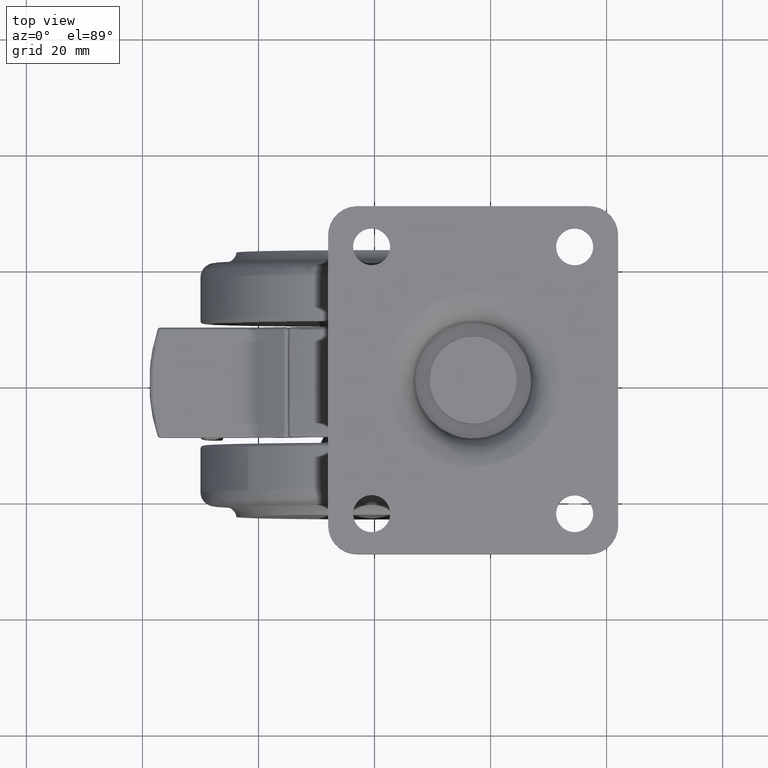
[diagram: clean part render]
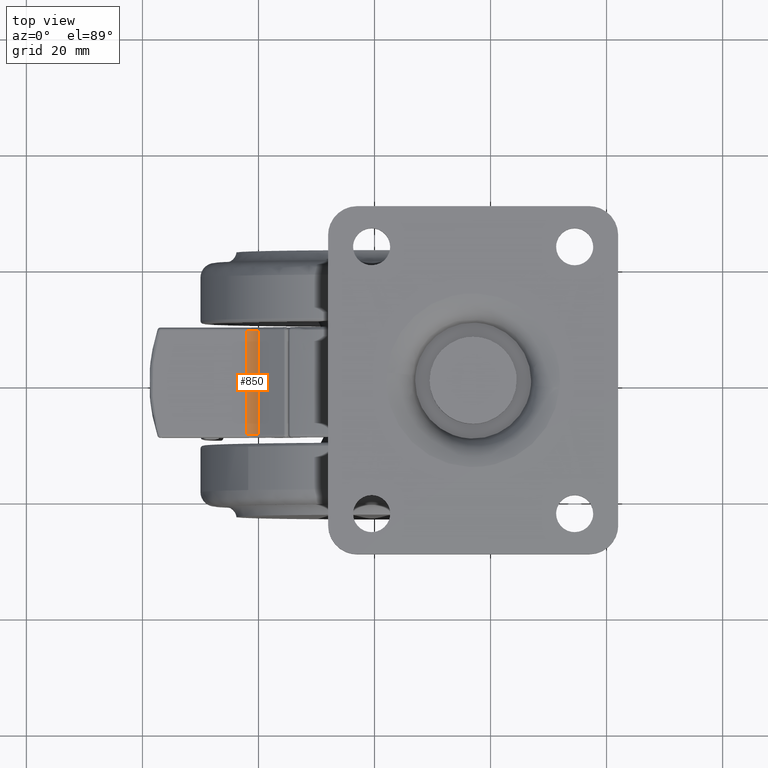
[diagram: same view with one face highlighted and labeled with its STEP entity id]
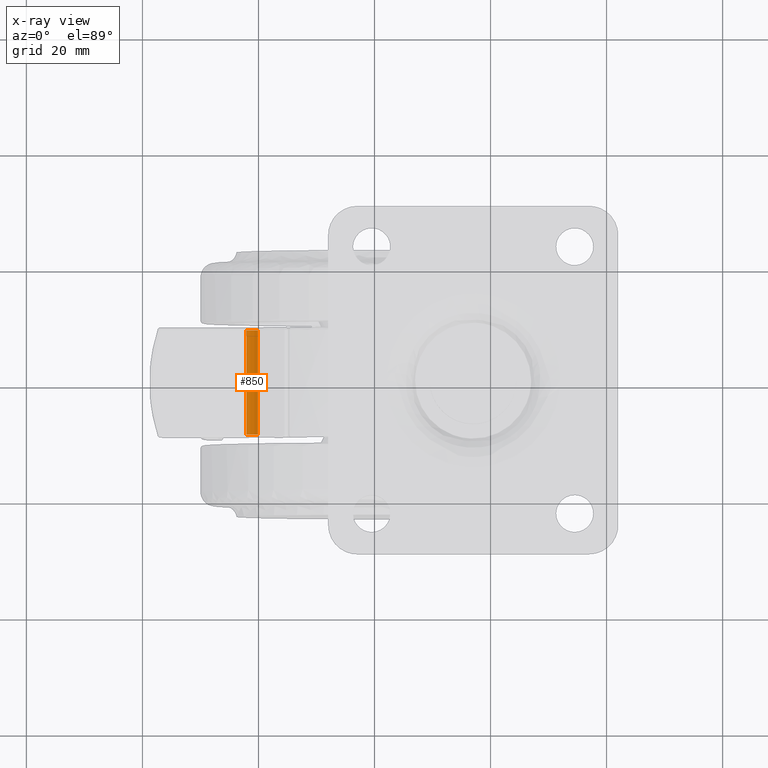
[diagram: x-ray of the same camera — body ghosted, the highlighted face saturated]
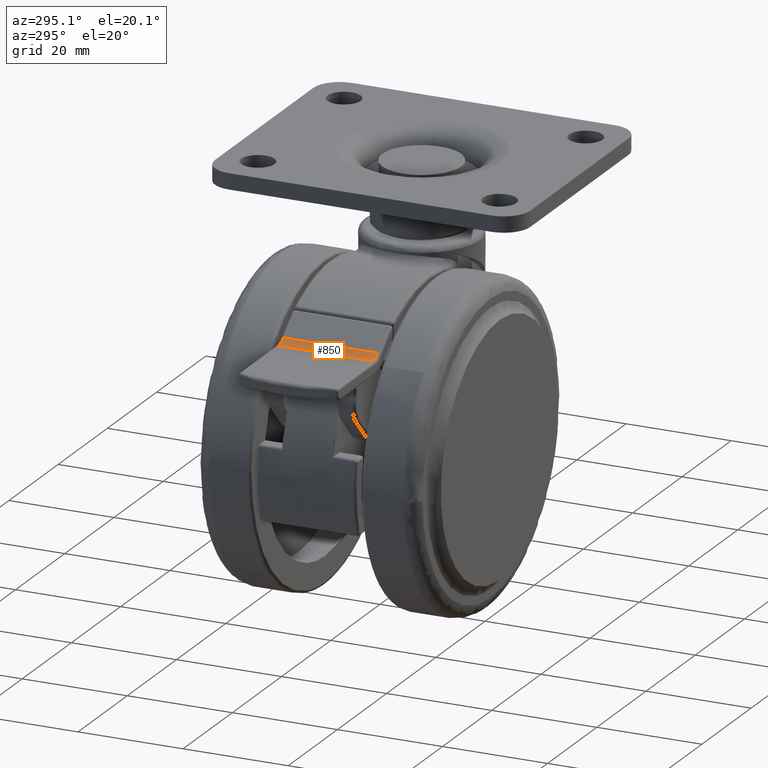
[diagram: same view with one face highlighted and labeled with its STEP entity id]
A machine part, top view. The second image highlights one B-rep face of the part: STEP entity #850.
The next image is the same camera in x-ray: the body ghosted, the highlighted face saturated — about 0% of this face is hidden behind the body in this view.
A second angle (auxiliary view) of the same face is appended — the face is thin or edge-on in the first view.
In plain terms, the highlighted face is a freeform B-spline surface patch.
Its self-contained STEP definition (entity closure, byte-faithful):
#22=CARTESIAN_POINT('',(-20.096919726223302,-8.999999999999901,22.270169702907200));
#23=VERTEX_POINT('',#22);
#83=CARTESIAN_POINT('',(-22.107690969433900,-8.999999999999901,21.499999173841701));
#84=VERTEX_POINT('',#83);
#140=CARTESIAN_POINT('',(-22.107690969433900,-8.999999999999901,21.499999173841701));
#141=CARTESIAN_POINT('',(-21.809435746955320,-8.999999999999904,21.499478390067139));
#142=CARTESIAN_POINT('',(-21.327677130885512,-8.999999999999901,21.571476822898461));
#143=CARTESIAN_POINT('',(-20.645461573250660,-8.999999999999899,21.850900996037339));
#144=CARTESIAN_POINT('',(-20.284448220892472,-8.999999999999897,22.101296703427071));
#145=CARTESIAN_POINT('',(-20.096919726223302,-8.999999999999901,22.270169702907200));
#146=B_SPLINE_CURVE_WITH_KNOTS('',3,(#140,#141,#142,#143,#144,#145),.UNSPECIFIED.,.F.,.U.,(4,1,1,4),(0.000000021703008,0.894713127252542,1.445290847510591,2.202355685032096),.UNSPECIFIED.);
#147=EDGE_CURVE('',#84,#23,#146,.T.);
#181=CARTESIAN_POINT('',(-20.096919726223302,8.999999999999901,22.270169702907200));
#182=VERTEX_POINT('',#181);
#238=CARTESIAN_POINT('',(-22.107690969433900,8.999999999999901,21.499999173841701));
#239=VERTEX_POINT('',#238);
#308=CARTESIAN_POINT('',(-20.096919726223302,8.999999999999901,22.270169702907200));
#309=CARTESIAN_POINT('',(-20.224799901547971,8.999999999999899,22.155058887043921));
#310=CARTESIAN_POINT('',(-20.527985110725851,8.999999999999908,21.926101371422352));
#311=CARTESIAN_POINT('',(-21.190086319835491,8.999999999999877,21.600002789578308));
#312=CARTESIAN_POINT('',(-21.752051114829541,8.999999999999938,21.499245326365010));
#313=CARTESIAN_POINT('',(-22.107690969433900,8.999999999999901,21.499999173841701));
#314=B_SPLINE_CURVE_WITH_KNOTS('',3,(#308,#309,#310,#311,#312,#313),.UNSPECIFIED.,.F.,.U.,(4,1,1,4),(0.000000021700258,0.516176941181344,1.135574742589845,2.202355685032114),.UNSPECIFIED.);
#315=EDGE_CURVE('',#182,#239,#314,.T.);
#817=CARTESIAN_POINT('',(-20.096919726223302,8.999999999999901,22.270169702907200));
#818=CARTESIAN_POINT('',(-20.096919726223302,-8.999999999999901,22.270169702907200));
#819=QUASI_UNIFORM_CURVE('',1,(#817,#818),.UNSPECIFIED.,.F.,.U.);
#820=EDGE_CURVE('',#182,#23,#819,.T.);
#826=CARTESIAN_POINT('',(-20.018818004706564,9.449999999999896,22.343023086802226));
#827=CARTESIAN_POINT('',(-20.018818004706564,-9.461249999999897,22.343023086802226));
#828=CARTESIAN_POINT('',(-20.937863578311230,9.449999999999895,21.454619640960601));
#829=CARTESIAN_POINT('',(-20.937863578311230,-9.461249999999897,21.454619640960601));
#830=CARTESIAN_POINT('',(-22.215225894519822,9.449999999999896,21.502063945949093));
#831=CARTESIAN_POINT('',(-22.215225894519822,-9.461249999999897,21.502063945949093));
#839=(BOUNDED_SURFACE()B_SPLINE_SURFACE(1,2,((#826,#828,#830),(#827,#829,#831)),.UNSPECIFIED.,.F.,.F.,.U.)B_SPLINE_SURFACE_WITH_KNOTS((2,2),(3,3),(0.0,18.911249999999789),(0.0,2.449919364480454),.UNSPECIFIED.)GEOMETRIC_REPRESENTATION_ITEM()RATIONAL_B_SPLINE_SURFACE(((0.998504094902955,0.915251623425957,0.991246006226534),(0.998504094902955,0.915251623425957,0.991246006226534)))REPRESENTATION_ITEM('')SURFACE());
#840=ORIENTED_EDGE('',*,*,#820,.F.);
#841=ORIENTED_EDGE('',*,*,#315,.T.);
#842=CARTESIAN_POINT('',(-22.107690969433900,8.999999999999901,21.499999173841701));
#843=CARTESIAN_POINT('',(-22.107690969433900,-8.999999999999901,21.499999173841701));
#844=QUASI_UNIFORM_CURVE('',1,(#842,#843),.UNSPECIFIED.,.F.,.U.);
#845=EDGE_CURVE('',#239,#84,#844,.T.);
#846=ORIENTED_EDGE('',*,*,#845,.T.);
#847=ORIENTED_EDGE('',*,*,#147,.T.);
#848=EDGE_LOOP('',(#840,#841,#846,#847));
#849=FACE_OUTER_BOUND('',#848,.T.);
#850=ADVANCED_FACE('',(#849),#839,.F.);